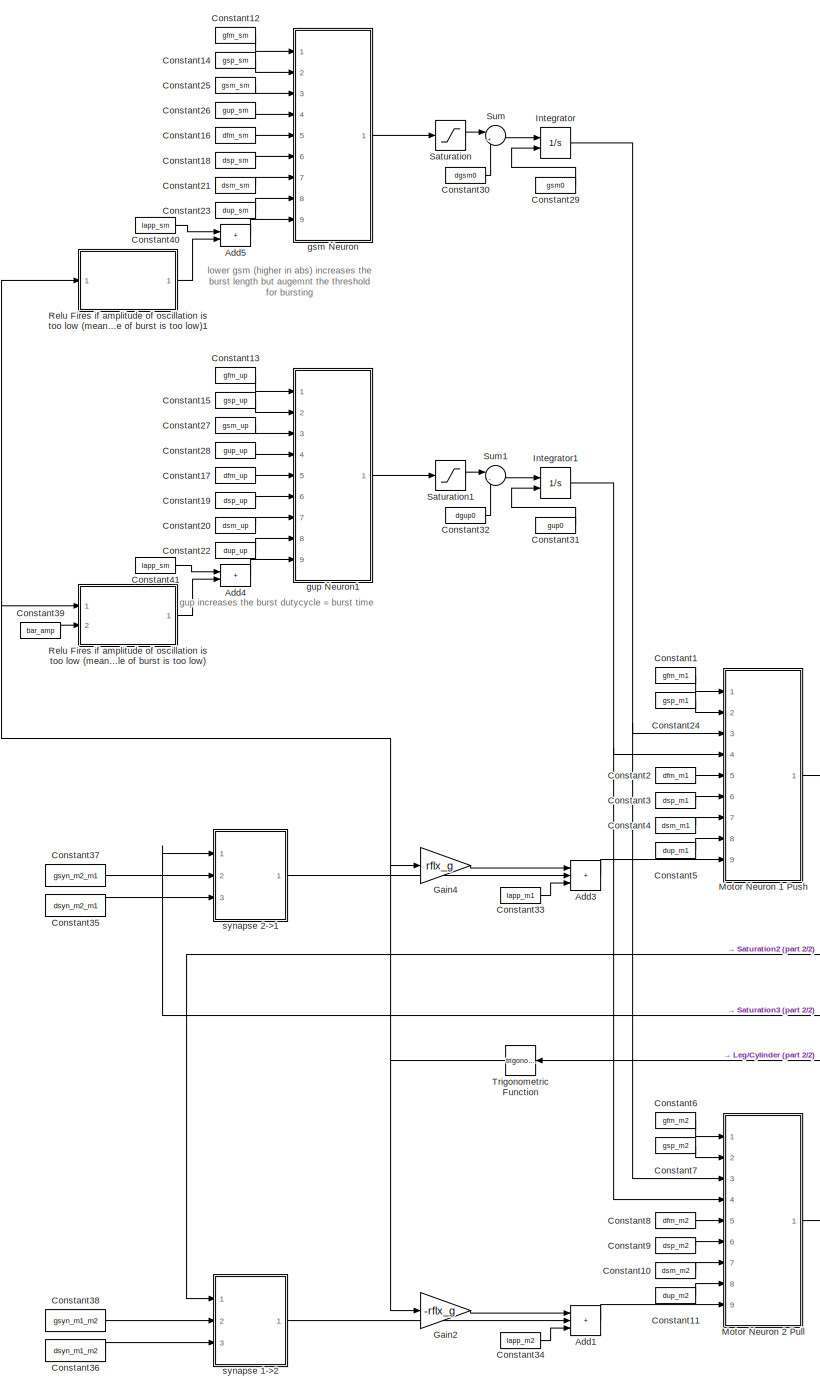
[diagram: root canvas - part 1/2, left side, full height]
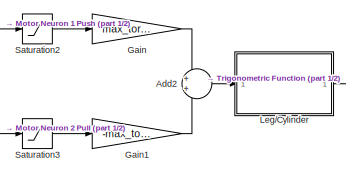
[diagram: root canvas - part 2/2, bottom right region]
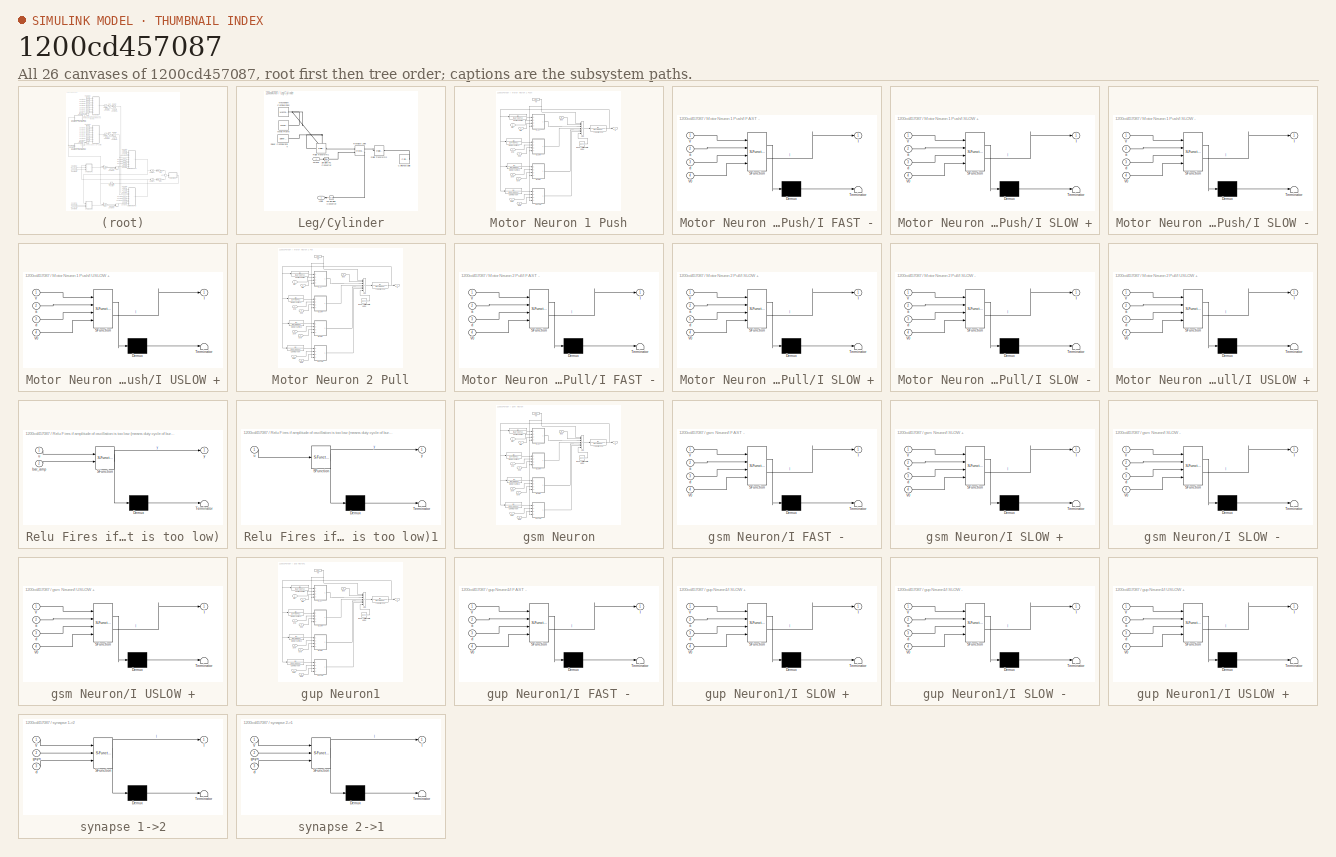
[diagram: thumbnail index - all 26 canvases of the model, root first then tree order]
MODEL slx_1200cd457087
KIND model
CONFIG AbsTol = auto
CONFIG EnableMultiTasking = off
CONFIG FixedStep = auto
CONFIG MaxStep = auto
CONFIG MinStep = auto
CONFIG RelTol = 1e-3
CONFIG SampleTimeConstraint = Unconstrained
CONFIG SolverName = VariableStepAuto
CONFIG StartTime = 0.0
CONFIG StopTime = 10.0
BLOCK [Sum] Add1
  IconShape = rectangular
  Inputs = +++
  Ports = [3, 1]
BLOCK [Sum] Add2
  Ports = [2, 1]
BLOCK [Sum] Add3
  IconShape = rectangular
  Inputs = +++
  Ports = [3, 1]
BLOCK [Sum] Add4
  IconShape = rectangular
  Ports = [2, 1]
BLOCK [Sum] Add5
  IconShape = rectangular
  Ports = [2, 1]
BLOCK [Constant] Constant1
  Value = gfm_m1
BLOCK [Constant] Constant10
  Value = dsm_m2
BLOCK [Constant] Constant11
  Value = dup_m2
BLOCK [Constant] Constant12
  Value = gfm_sm
BLOCK [Constant] Constant13
  Value = gfm_up
BLOCK [Constant] Constant14
  Value = gsp_sm
BLOCK [Constant] Constant15
  Value = gsp_up
BLOCK [Constant] Constant16
  Value = dfm_sm
BLOCK [Constant] Constant17
  Value = dfm_up
BLOCK [Constant] Constant18
  Value = dsp_sm
BLOCK [Constant] Constant19
  Value = dsp_up
BLOCK [Constant] Constant2
  Value = dfm_m1
BLOCK [Constant] Constant20
  Value = dsm_up
BLOCK [Constant] Constant21
  Value = dsm_sm
BLOCK [Constant] Constant22
  Value = dup_up
BLOCK [Constant] Constant23
  Value = dup_sm
BLOCK [Constant] Constant24
  Value = gsp_m1
BLOCK [Constant] Constant25
  Value = gsm_sm
BLOCK [Constant] Constant26
  Value = gup_sm
BLOCK [Constant] Constant27
  Value = gsm_up
BLOCK [Constant] Constant28
  Value = gup_up
BLOCK [Constant] Constant29
  Value = gsm0
BLOCK [Constant] Constant3
  Value = dsp_m1
BLOCK [Constant] Constant30
  Value = dgsm0
BLOCK [Constant] Constant31
  Value = gup0
BLOCK [Constant] Constant32
  Value = dgup0
BLOCK [Constant] Constant33
  Value = Iapp_m1
BLOCK [Constant] Constant34
  Value = Iapp_m2
BLOCK [Constant] Constant35
  Value = dsyn_m2_m1
BLOCK [Constant] Constant36
  Value = dsyn_m1_m2
BLOCK [Constant] Constant37
  Value = gsyn_m2_m1
BLOCK [Constant] Constant38
  Value = gsyn_m1_m2
BLOCK [Constant] Constant39
  NameLocation = top
  Value = bar_amp
BLOCK [Constant] Constant4
  Value = dsm_m1
BLOCK [Constant] Constant40
  Value = Iapp_sm
BLOCK [Constant] Constant41
  Value = Iapp_sm
BLOCK [Constant] Constant5
  Value = dup_m1
BLOCK [Constant] Constant6
  Value = gfm_m2
BLOCK [Constant] Constant7
  Value = gsp_m2
BLOCK [Constant] Constant8
  Value = dfm_m2
BLOCK [Constant] Constant9
  Value = dsp_m2
BLOCK [Gain] Gain
  Gain = max_torque
BLOCK [Gain] Gain1
  Gain = -max_torque
BLOCK [Gain] Gain2
  Gain = -rflx_g
BLOCK [Gain] Gain4
  Gain = rflx_g
  NameLocation = top
BLOCK [Integrator] Integrator
  InitialCondition = gsm0
  InitialConditionSource = external
  Ports = [2, 1]
BLOCK [Integrator] Integrator1
  InitialCondition = gsm0
  InitialConditionSource = external
  Ports = [2, 1]
BLOCK [SubSystem] Leg//Cylinder
  Ports = [1, 1]
  RequestExecContextInheritance = off
BLOCK [Outport] Leg//Cylinder/Angle
BLOCK [Reference] Leg//Cylinder/Cylindrical Solid  REF=sm_lib/Body Elements/Cylindrical Solid
  Ports = [0, 0, 0, 0, 0, 0, 1]
  SourceBlock = sm_lib/Body Elements/Cylindrical Solid
  SourceProductBaseCode = MS
  SourceType = Cylindrical Solid
BLOCK [Reference] Leg//Cylinder/Mechanism Configuration  REF=sm_lib/Utilities/Mechanism
Configuration
  Ports = [0, 0, 0, 0, 0, 0, 1]
  SourceBlock = sm_lib/Utilities/Mechanism\nConfiguration
  SourceProductBaseCode = MS
  SourceType = Mechanism\nConfiguration
BLOCK [Reference] Leg//Cylinder/PS-Simulink Converter  REF=nesl_utility/PS-Simulink
Converter
  Ports = [0, 1, 0, 0, 0, 1]
  SourceBlock = nesl_utility/PS-Simulink\nConverter
  SourceProductBaseCode = SS,PW,VE
  SourceType = PS-Simulink\nConverter
BLOCK [Reference] Leg//Cylinder/Revolute Joint  REF=sm_lib/Joints/Revolute Joint
  Ports = [0, 0, 0, 0, 0, 2, 2]
  SourceBlock = sm_lib/Joints/Revolute Joint
  SourceProductBaseCode = MS
  SourceType = Revolute Joint
BLOCK [Reference] Leg//Cylinder/Rigid Transform1  REF=sm_lib/Frames and
Transforms/Rigid
Transform
  Ports = [0, 0, 0, 0, 0, 1, 1]
  SourceBlock = sm_lib/Frames and\nTransforms/Rigid\nTransform
  SourceProductBaseCode = MS
  SourceType = Rigid\nTransform
BLOCK [Reference] Leg//Cylinder/Rigid Transform2  REF=sm_lib/Frames and
Transforms/Rigid
Transform
  Ports = [0, 0, 0, 0, 0, 1, 1]
  SourceBlock = sm_lib/Frames and\nTransforms/Rigid\nTransform
  SourceProductBaseCode = MS
  SourceType = Rigid\nTransform
BLOCK [Reference] Leg//Cylinder/Simulink-PS Converter  REF=nesl_utility/Simulink-PS
Converter
  Ports = [1, 0, 0, 0, 0, 0, 1]
  SourceBlock = nesl_utility/Simulink-PS\nConverter
  SourceProductBaseCode = SS,PW,VE
  SourceType = Simulink-PS\nConverter
BLOCK [Reference] Leg//Cylinder/Solver Configuration  REF=nesl_utility/Solver
Configuration
  Ports = [0, 0, 0, 0, 0, 0, 1]
  SourceBlock = nesl_utility/Solver\nConfiguration
  SourceProductBaseCode = SS,PW,VE
  SourceType = Solver\nConfiguration
BLOCK [Inport] Leg//Cylinder/Torque
BLOCK [Reference] Leg//Cylinder/World Frame  REF=sm_lib/Frames and
Transforms/World Frame
  Ports = [0, 0, 0, 0, 0, 0, 1]
  SourceBlock = sm_lib/Frames and\nTransforms/World Frame
  SourceProductBaseCode = MS
  SourceType = World Frame
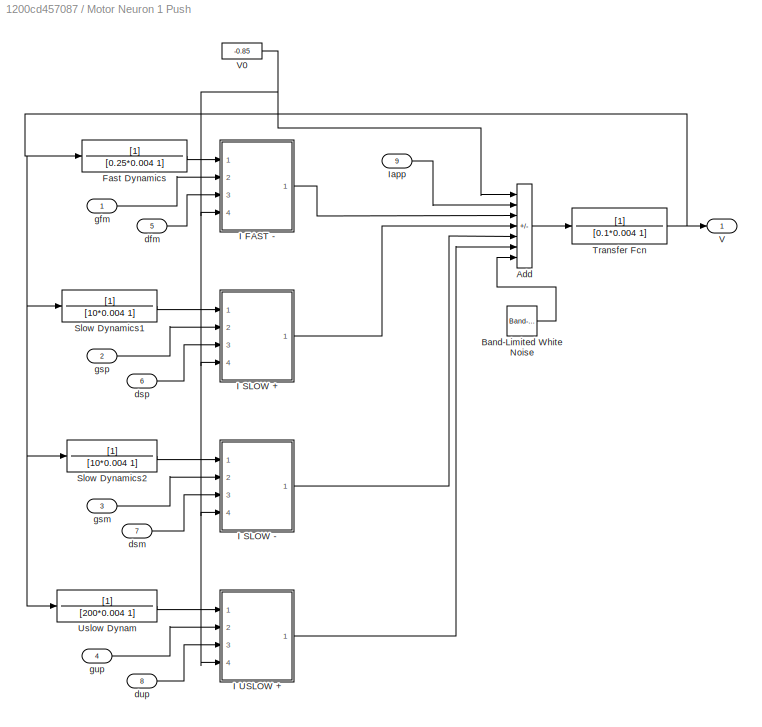
BLOCK [SubSystem] Motor Neuron 1 Push
  Ports = [9, 1]
  RequestExecContextInheritance = off
BLOCK [Sum] Motor Neuron 1 Push/Add
  IconShape = rectangular
  Inputs = ++----+
  Ports = [7, 1]
BLOCK [Reference] Motor Neuron 1 Push/Band-Limited White Noise  REF=simulink/Sources/Band-Limited
White Noise
  Ports = [0, 1]
  SourceBlock = simulink/Sources/Band-Limited\nWhite Noise
  SourceProductBaseCode = SL
  SourceType = Band-Limited White Noise.
BLOCK [TransferFcn] Motor Neuron 1 Push/Fast Dynamics
  Denominator = [0.25*0.004 1]
BLOCK [SubSystem] Motor Neuron 1 Push/I FAST -
  ErrorFcn = Stateflow.Translate.translate
  PermitHierarchicalResolution = ExplicitOnly
  Ports = [4, 1]
  RequestExecContextInheritance = off
  SFBlockType = MATLAB Function
  TreatAsAtomicUnit = on
BLOCK [Demux] Motor Neuron 1 Push/I FAST -/ Demux 
  Outputs = 1
  Ports = [1, 1]
BLOCK [S-Function] Motor Neuron 1 Push/I FAST -/ SFunction 
  EnableBusSupport = on
  FunctionName = sf_sfun
  PortCounts = [4 2]
  Ports = [4, 2]
  SFcnIsStateOwnerBlock = off
  SFunctionDeploymentMode = off
  Tag = Stateflow S-Function 27
BLOCK [Terminator] Motor Neuron 1 Push/I FAST -/ Terminator 
BLOCK [Outport] Motor Neuron 1 Push/I FAST -/I
BLOCK [Inport] Motor Neuron 1 Push/I FAST -/V
BLOCK [Inport] Motor Neuron 1 Push/I FAST -/V0
  Port = 4
BLOCK [Inport] Motor Neuron 1 Push/I FAST -/a
  Port = 2
BLOCK [Inport] Motor Neuron 1 Push/I FAST -/d
  Port = 3
BLOCK [SubSystem] Motor Neuron 1 Push/I SLOW +
  ErrorFcn = Stateflow.Translate.translate
  PermitHierarchicalResolution = ExplicitOnly
  Ports = [4, 1]
  RequestExecContextInheritance = off
  SFBlockType = MATLAB Function
  TreatAsAtomicUnit = on
BLOCK [Demux] Motor Neuron 1 Push/I SLOW +/ Demux 
  Outputs = 1
  Ports = [1, 1]
BLOCK [S-Function] Motor Neuron 1 Push/I SLOW +/ SFunction 
  EnableBusSupport = on
  FunctionName = sf_sfun
  PortCounts = [4 2]
  Ports = [4, 2]
  SFcnIsStateOwnerBlock = off
  SFunctionDeploymentMode = off
  Tag = Stateflow S-Function 28
BLOCK [Terminator] Motor Neuron 1 Push/I SLOW +/ Terminator 
BLOCK [Outport] Motor Neuron 1 Push/I SLOW +/I
BLOCK [Inport] Motor Neuron 1 Push/I SLOW +/V
BLOCK [Inport] Motor Neuron 1 Push/I SLOW +/V0
  Port = 4
BLOCK [Inport] Motor Neuron 1 Push/I SLOW +/a
  Port = 2
BLOCK [Inport] Motor Neuron 1 Push/I SLOW +/d
  Port = 3
BLOCK [SubSystem] Motor Neuron 1 Push/I SLOW -
  ErrorFcn = Stateflow.Translate.translate
  PermitHierarchicalResolution = ExplicitOnly
  Ports = [4, 1]
  RequestExecContextInheritance = off
  SFBlockType = MATLAB Function
  TreatAsAtomicUnit = on
BLOCK [Demux] Motor Neuron 1 Push/I SLOW -/ Demux 
  Outputs = 1
  Ports = [1, 1]
BLOCK [S-Function] Motor Neuron 1 Push/I SLOW -/ SFunction 
  EnableBusSupport = on
  FunctionName = sf_sfun
  PortCounts = [4 2]
  Ports = [4, 2]
  SFcnIsStateOwnerBlock = off
  SFunctionDeploymentMode = off
  Tag = Stateflow S-Function 29
BLOCK [Terminator] Motor Neuron 1 Push/I SLOW -/ Terminator 
BLOCK [Outport] Motor Neuron 1 Push/I SLOW -/I
BLOCK [Inport] Motor Neuron 1 Push/I SLOW -/V
BLOCK [Inport] Motor Neuron 1 Push/I SLOW -/V0
  Port = 4
BLOCK [Inport] Motor Neuron 1 Push/I SLOW -/a
  Port = 2
BLOCK [Inport] Motor Neuron 1 Push/I SLOW -/d
  Port = 3
BLOCK [SubSystem] Motor Neuron 1 Push/I USLOW +
  ErrorFcn = Stateflow.Translate.translate
  PermitHierarchicalResolution = ExplicitOnly
  Ports = [4, 1]
  RequestExecContextInheritance = off
  SFBlockType = MATLAB Function
  TreatAsAtomicUnit = on
BLOCK [Demux] Motor Neuron 1 Push/I USLOW +/ Demux 
  Outputs = 1
  Ports = [1, 1]
BLOCK [S-Function] Motor Neuron 1 Push/I USLOW +/ SFunction 
  EnableBusSupport = on
  FunctionName = sf_sfun
  PortCounts = [4 2]
  Ports = [4, 2]
  SFcnIsStateOwnerBlock = off
  SFunctionDeploymentMode = off
  Tag = Stateflow S-Function 30
BLOCK [Terminator] Motor Neuron 1 Push/I USLOW +/ Terminator 
BLOCK [Outport] Motor Neuron 1 Push/I USLOW +/I
BLOCK [Inport] Motor Neuron 1 Push/I USLOW +/V
BLOCK [Inport] Motor Neuron 1 Push/I USLOW +/V0
  Port = 4
BLOCK [Inport] Motor Neuron 1 Push/I USLOW +/a
  Port = 2
BLOCK [Inport] Motor Neuron 1 Push/I USLOW +/d
  Port = 3
BLOCK [Inport] Motor Neuron 1 Push/Iapp
  Port = 9
BLOCK [TransferFcn] Motor Neuron 1 Push/Slow Dynamics1
  Denominator = [10*0.004 1]
BLOCK [TransferFcn] Motor Neuron 1 Push/Slow Dynamics2
  Denominator = [10*0.004 1]
BLOCK [TransferFcn] Motor Neuron 1 Push/Transfer Fcn
  Denominator = [0.1*0.004 1]
BLOCK [TransferFcn] Motor Neuron 1 Push/Uslow Dynam
  Denominator = [200*0.004 1]
BLOCK [Outport] Motor Neuron 1 Push/V
BLOCK [Constant] Motor Neuron 1 Push/V0
  Value = -0.85
BLOCK [Inport] Motor Neuron 1 Push/dfm
  Port = 5
BLOCK [Inport] Motor Neuron 1 Push/dsm
  Port = 7
BLOCK [Inport] Motor Neuron 1 Push/dsp
  Port = 6
BLOCK [Inport] Motor Neuron 1 Push/dup
  Port = 8
BLOCK [Inport] Motor Neuron 1 Push/gfm
BLOCK [Inport] Motor Neuron 1 Push/gsm
  Port = 3
BLOCK [Inport] Motor Neuron 1 Push/gsp
  Port = 2
BLOCK [Inport] Motor Neuron 1 Push/gup
  Port = 4
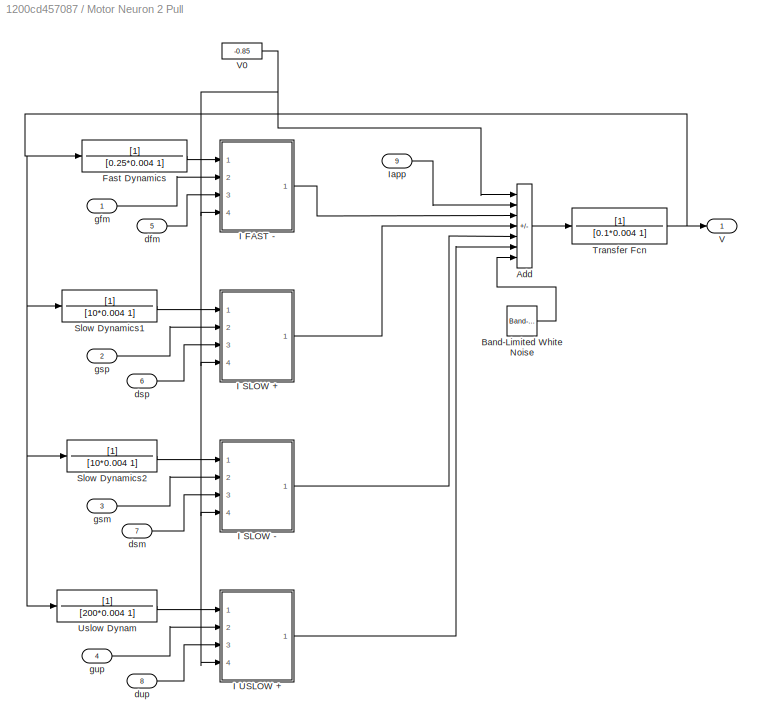
BLOCK [SubSystem] Motor Neuron 2 Pull
  Ports = [9, 1]
  RequestExecContextInheritance = off
BLOCK [Sum] Motor Neuron 2 Pull/Add
  IconShape = rectangular
  Inputs = ++----+
  Ports = [7, 1]
BLOCK [Reference] Motor Neuron 2 Pull/Band-Limited White Noise  REF=simulink/Sources/Band-Limited
White Noise
  Ports = [0, 1]
  SourceBlock = simulink/Sources/Band-Limited\nWhite Noise
  SourceProductBaseCode = SL
  SourceType = Band-Limited White Noise.
BLOCK [TransferFcn] Motor Neuron 2 Pull/Fast Dynamics
  Denominator = [0.25*0.004 1]
BLOCK [SubSystem] Motor Neuron 2 Pull/I FAST -
  ErrorFcn = Stateflow.Translate.translate
  PermitHierarchicalResolution = ExplicitOnly
  Ports = [4, 1]
  RequestExecContextInheritance = off
  SFBlockType = MATLAB Function
  TreatAsAtomicUnit = on
BLOCK [Demux] Motor Neuron 2 Pull/I FAST -/ Demux 
  Outputs = 1
  Ports = [1, 1]
BLOCK [S-Function] Motor Neuron 2 Pull/I FAST -/ SFunction 
  EnableBusSupport = on
  FunctionName = sf_sfun
  PortCounts = [4 2]
  Ports = [4, 2]
  SFcnIsStateOwnerBlock = off
  SFunctionDeploymentMode = off
  Tag = Stateflow S-Function 1
BLOCK [Terminator] Motor Neuron 2 Pull/I FAST -/ Terminator 
BLOCK [Outport] Motor Neuron 2 Pull/I FAST -/I
BLOCK [Inport] Motor Neuron 2 Pull/I FAST -/V
BLOCK [Inport] Motor Neuron 2 Pull/I FAST -/V0
  Port = 4
BLOCK [Inport] Motor Neuron 2 Pull/I FAST -/a
  Port = 2
BLOCK [Inport] Motor Neuron 2 Pull/I FAST -/d
  Port = 3
BLOCK [SubSystem] Motor Neuron 2 Pull/I SLOW +
  ErrorFcn = Stateflow.Translate.translate
  PermitHierarchicalResolution = ExplicitOnly
  Ports = [4, 1]
  RequestExecContextInheritance = off
  SFBlockType = MATLAB Function
  TreatAsAtomicUnit = on
BLOCK [Demux] Motor Neuron 2 Pull/I SLOW +/ Demux 
  Outputs = 1
  Ports = [1, 1]
BLOCK [S-Function] Motor Neuron 2 Pull/I SLOW +/ SFunction 
  EnableBusSupport = on
  FunctionName = sf_sfun
  PortCounts = [4 2]
  Ports = [4, 2]
  SFcnIsStateOwnerBlock = off
  SFunctionDeploymentMode = off
  Tag = Stateflow S-Function 2
BLOCK [Terminator] Motor Neuron 2 Pull/I SLOW +/ Terminator 
BLOCK [Outport] Motor Neuron 2 Pull/I SLOW +/I
BLOCK [Inport] Motor Neuron 2 Pull/I SLOW +/V
BLOCK [Inport] Motor Neuron 2 Pull/I SLOW +/V0
  Port = 4
BLOCK [Inport] Motor Neuron 2 Pull/I SLOW +/a
  Port = 2
BLOCK [Inport] Motor Neuron 2 Pull/I SLOW +/d
  Port = 3
BLOCK [SubSystem] Motor Neuron 2 Pull/I SLOW -
  ErrorFcn = Stateflow.Translate.translate
  PermitHierarchicalResolution = ExplicitOnly
  Ports = [4, 1]
  RequestExecContextInheritance = off
  SFBlockType = MATLAB Function
  TreatAsAtomicUnit = on
BLOCK [Demux] Motor Neuron 2 Pull/I SLOW -/ Demux 
  Outputs = 1
  Ports = [1, 1]
BLOCK [S-Function] Motor Neuron 2 Pull/I SLOW -/ SFunction 
  EnableBusSupport = on
  FunctionName = sf_sfun
  PortCounts = [4 2]
  Ports = [4, 2]
  SFcnIsStateOwnerBlock = off
  SFunctionDeploymentMode = off
  Tag = Stateflow S-Function 3
BLOCK [Terminator] Motor Neuron 2 Pull/I SLOW -/ Terminator 
BLOCK [Outport] Motor Neuron 2 Pull/I SLOW -/I
BLOCK [Inport] Motor Neuron 2 Pull/I SLOW -/V
BLOCK [Inport] Motor Neuron 2 Pull/I SLOW -/V0
  Port = 4
BLOCK [Inport] Motor Neuron 2 Pull/I SLOW -/a
  Port = 2
BLOCK [Inport] Motor Neuron 2 Pull/I SLOW -/d
  Port = 3
BLOCK [SubSystem] Motor Neuron 2 Pull/I USLOW +
  ErrorFcn = Stateflow.Translate.translate
  PermitHierarchicalResolution = ExplicitOnly
  Ports = [4, 1]
  RequestExecContextInheritance = off
  SFBlockType = MATLAB Function
  TreatAsAtomicUnit = on
BLOCK [Demux] Motor Neuron 2 Pull/I USLOW +/ Demux 
  Outputs = 1
  Ports = [1, 1]
BLOCK [S-Function] Motor Neuron 2 Pull/I USLOW +/ SFunction 
  EnableBusSupport = on
  FunctionName = sf_sfun
  PortCounts = [4 2]
  Ports = [4, 2]
  SFcnIsStateOwnerBlock = off
  SFunctionDeploymentMode = off
  Tag = Stateflow S-Function 4
BLOCK [Terminator] Motor Neuron 2 Pull/I USLOW +/ Terminator 
BLOCK [Outport] Motor Neuron 2 Pull/I USLOW +/I
BLOCK [Inport] Motor Neuron 2 Pull/I USLOW +/V
BLOCK [Inport] Motor Neuron 2 Pull/I USLOW +/V0
  Port = 4
BLOCK [Inport] Motor Neuron 2 Pull/I USLOW +/a
  Port = 2
BLOCK [Inport] Motor Neuron 2 Pull/I USLOW +/d
  Port = 3
BLOCK [Inport] Motor Neuron 2 Pull/Iapp
  Port = 9
BLOCK [TransferFcn] Motor Neuron 2 Pull/Slow Dynamics1
  Denominator = [10*0.004 1]
BLOCK [TransferFcn] Motor Neuron 2 Pull/Slow Dynamics2
  Denominator = [10*0.004 1]
BLOCK [TransferFcn] Motor Neuron 2 Pull/Transfer Fcn
  Denominator = [0.1*0.004 1]
BLOCK [TransferFcn] Motor Neuron 2 Pull/Uslow Dynam
  Denominator = [200*0.004 1]
BLOCK [Outport] Motor Neuron 2 Pull/V
BLOCK [Constant] Motor Neuron 2 Pull/V0
  Value = -0.85
BLOCK [Inport] Motor Neuron 2 Pull/dfm
  Port = 5
BLOCK [Inport] Motor Neuron 2 Pull/dsm
  Port = 7
BLOCK [Inport] Motor Neuron 2 Pull/dsp
  Port = 6
BLOCK [Inport] Motor Neuron 2 Pull/dup
  Port = 8
BLOCK [Inport] Motor Neuron 2 Pull/gfm
BLOCK [Inport] Motor Neuron 2 Pull/gsm
  Port = 3
BLOCK [Inport] Motor Neuron 2 Pull/gsp
  Port = 2
BLOCK [Inport] Motor Neuron 2 Pull/gup
  Port = 4
BLOCK [SubSystem] Relu Fires if amplitude of oscillation is too low (means duty cycle of burst is too low)
  ErrorFcn = Stateflow.Translate.translate
  PermitHierarchicalResolution = ExplicitOnly
  Ports = [2, 1]
  RequestExecContextInheritance = off
  SFBlockType = MATLAB Function
  TreatAsAtomicUnit = on
BLOCK [Demux] Relu Fires if amplitude of oscillation is too low (means duty cycle of burst is too low)/ Demux 
  Outputs = 1
  Ports = [1, 1]
BLOCK [S-Function] Relu Fires if amplitude of oscillation is too low (means duty cycle of burst is too low)/ SFunction 
  EnableBusSupport = on
  FunctionName = sf_sfun
  PortCounts = [2 2]
  Ports = [2, 2]
  SFcnIsStateOwnerBlock = off
  SFunctionDeploymentMode = off
  Tag = Stateflow S-Function 17
BLOCK [Terminator] Relu Fires if amplitude of oscillation is too low (means duty cycle of burst is too low)/ Terminator 
BLOCK [Inport] Relu Fires if amplitude of oscillation is too low (means duty cycle of burst is too low)/bar_amp
  Port = 2
BLOCK [Inport] Relu Fires if amplitude of oscillation is too low (means duty cycle of burst is too low)/u
BLOCK [Outport] Relu Fires if amplitude of oscillation is too low (means duty cycle of burst is too low)/y
BLOCK [SubSystem] Relu Fires if amplitude of oscillation is too low (means duty cycle of burst is too low)1
  ErrorFcn = Stateflow.Translate.translate
  PermitHierarchicalResolution = ExplicitOnly
  Ports = [1, 1]
  RequestExecContextInheritance = off
  SFBlockType = MATLAB Function
  TreatAsAtomicUnit = on
BLOCK [Demux] Relu Fires if amplitude of oscillation is too low (means duty cycle of burst is too low)1/ Demux 
  Outputs = 1
  Ports = [1, 1]
BLOCK [S-Function] Relu Fires if amplitude of oscillation is too low (means duty cycle of burst is too low)1/ SFunction 
  EnableBusSupport = on
  FunctionName = sf_sfun
  PortCounts = [1 2]
  Ports = [1, 2]
  SFcnIsStateOwnerBlock = off
  SFunctionDeploymentMode = off
  Tag = Stateflow S-Function 15
BLOCK [Terminator] Relu Fires if amplitude of oscillation is too low (means duty cycle of burst is too low)1/ Terminator 
BLOCK [Inport] Relu Fires if amplitude of oscillation is too low (means duty cycle of burst is too low)1/u
BLOCK [Outport] Relu Fires if amplitude of oscillation is too low (means duty cycle of burst is too low)1/y
BLOCK [Saturate] Saturation
  LowerLimit = 0
  UpperLimit = 5
BLOCK [Saturate] Saturation1
  LowerLimit = 0
  UpperLimit = 5
BLOCK [Saturate] Saturation2
  LowerLimit = 0.0
  UpperLimit = 1.0
BLOCK [Saturate] Saturation3
  LowerLimit = 0.0
  UpperLimit = 1.0
BLOCK [Sum] Sum
  Inputs = |++
  Ports = [2, 1]
BLOCK [Sum] Sum1
  Inputs = |-+
  Ports = [2, 1]
BLOCK [Trigonometry] Trigonometric Function
  NameLocation = top
  Ports = [1, 1]
BLOCK [SubSystem] gsm Neuron
  Ports = [9, 1]
  RequestExecContextInheritance = off
BLOCK [Sum] gsm Neuron/Add
  IconShape = rectangular
  Inputs = ++----+
  Ports = [7, 1]
BLOCK [Reference] gsm Neuron/Band-Limited White Noise  REF=simulink/Sources/Band-Limited
White Noise
  Ports = [0, 1]
  SourceBlock = simulink/Sources/Band-Limited\nWhite Noise
  SourceProductBaseCode = SL
  SourceType = Band-Limited White Noise.
BLOCK [TransferFcn] gsm Neuron/Fast Dynamics
  Denominator = [0.25*0.004 1]
BLOCK [SubSystem] gsm Neuron/I FAST -
  ErrorFcn = Stateflow.Translate.translate
  PermitHierarchicalResolution = ExplicitOnly
  Ports = [4, 1]
  RequestExecContextInheritance = off
  SFBlockType = MATLAB Function
  TreatAsAtomicUnit = on
BLOCK [Demux] gsm Neuron/I FAST -/ Demux 
  Outputs = 1
  Ports = [1, 1]
BLOCK [S-Function] gsm Neuron/I FAST -/ SFunction 
  EnableBusSupport = on
  FunctionName = sf_sfun
  PortCounts = [4 2]
  Ports = [4, 2]
  SFcnIsStateOwnerBlock = off
  SFunctionDeploymentMode = off
  Tag = Stateflow S-Function 5
BLOCK [Terminator] gsm Neuron/I FAST -/ Terminator 
BLOCK [Outport] gsm Neuron/I FAST -/I
BLOCK [Inport] gsm Neuron/I FAST -/V
BLOCK [Inport] gsm Neuron/I FAST -/V0
  Port = 4
BLOCK [Inport] gsm Neuron/I FAST -/a
  Port = 2
BLOCK [Inport] gsm Neuron/I FAST -/d
  Port = 3
BLOCK [SubSystem] gsm Neuron/I SLOW +
  ErrorFcn = Stateflow.Translate.translate
  PermitHierarchicalResolution = ExplicitOnly
  Ports = [4, 1]
  RequestExecContextInheritance = off
  SFBlockType = MATLAB Function
  TreatAsAtomicUnit = on
BLOCK [Demux] gsm Neuron/I SLOW +/ Demux 
  Outputs = 1
  Ports = [1, 1]
BLOCK [S-Function] gsm Neuron/I SLOW +/ SFunction 
  EnableBusSupport = on
  FunctionName = sf_sfun
  PortCounts = [4 2]
  Ports = [4, 2]
  SFcnIsStateOwnerBlock = off
  SFunctionDeploymentMode = off
  Tag = Stateflow S-Function 6
BLOCK [Terminator] gsm Neuron/I SLOW +/ Terminator 
BLOCK [Outport] gsm Neuron/I SLOW +/I
BLOCK [Inport] gsm Neuron/I SLOW +/V
BLOCK [Inport] gsm Neuron/I SLOW +/V0
  Port = 4
BLOCK [Inport] gsm Neuron/I SLOW +/a
  Port = 2
BLOCK [Inport] gsm Neuron/I SLOW +/d
  Port = 3
BLOCK [SubSystem] gsm Neuron/I SLOW -
  ErrorFcn = Stateflow.Translate.translate
  PermitHierarchicalResolution = ExplicitOnly
  Ports = [4, 1]
  RequestExecContextInheritance = off
  SFBlockType = MATLAB Function
  TreatAsAtomicUnit = on
BLOCK [Demux] gsm Neuron/I SLOW -/ Demux 
  Outputs = 1
  Ports = [1, 1]
BLOCK [S-Function] gsm Neuron/I SLOW -/ SFunction 
  EnableBusSupport = on
  FunctionName = sf_sfun
  PortCounts = [4 2]
  Ports = [4, 2]
  SFcnIsStateOwnerBlock = off
  SFunctionDeploymentMode = off
  Tag = Stateflow S-Function 7
BLOCK [Terminator] gsm Neuron/I SLOW -/ Terminator 
BLOCK [Outport] gsm Neuron/I SLOW -/I
BLOCK [Inport] gsm Neuron/I SLOW -/V
BLOCK [Inport] gsm Neuron/I SLOW -/V0
  Port = 4
BLOCK [Inport] gsm Neuron/I SLOW -/a
  Port = 2
BLOCK [Inport] gsm Neuron/I SLOW -/d
  Port = 3
BLOCK [SubSystem] gsm Neuron/I USLOW +
  ErrorFcn = Stateflow.Translate.translate
  PermitHierarchicalResolution = ExplicitOnly
  Ports = [4, 1]
  RequestExecContextInheritance = off
  SFBlockType = MATLAB Function
  TreatAsAtomicUnit = on
BLOCK [Demux] gsm Neuron/I USLOW +/ Demux 
  Outputs = 1
  Ports = [1, 1]
BLOCK [S-Function] gsm Neuron/I USLOW +/ SFunction 
  EnableBusSupport = on
  FunctionName = sf_sfun
  PortCounts = [4 2]
  Ports = [4, 2]
  SFcnIsStateOwnerBlock = off
  SFunctionDeploymentMode = off
  Tag = Stateflow S-Function 8
BLOCK [Terminator] gsm Neuron/I USLOW +/ Terminator 
BLOCK [Outport] gsm Neuron/I USLOW +/I
BLOCK [Inport] gsm Neuron/I USLOW +/V
BLOCK [Inport] gsm Neuron/I USLOW +/V0
  Port = 4
BLOCK [Inport] gsm Neuron/I USLOW +/a
  Port = 2
BLOCK [Inport] gsm Neuron/I USLOW +/d
  Port = 3
BLOCK [Inport] gsm Neuron/Iapp
  Port = 9
BLOCK [TransferFcn] gsm Neuron/Slow Dynamics1
  Denominator = [10*0.004 1]
BLOCK [TransferFcn] gsm Neuron/Slow Dynamics2
  Denominator = [10*0.004 1]
BLOCK [TransferFcn] gsm Neuron/Transfer Fcn
  Denominator = [0.1*0.004 1]
BLOCK [TransferFcn] gsm Neuron/Uslow Dynam
  Denominator = [200*0.004 1]
BLOCK [Outport] gsm Neuron/V
BLOCK [Constant] gsm Neuron/V0
  Value = -0.85
BLOCK [Inport] gsm Neuron/dfm
  Port = 5
BLOCK [Inport] gsm Neuron/dsm
  Port = 7
BLOCK [Inport] gsm Neuron/dsp
  Port = 6
BLOCK [Inport] gsm Neuron/dup
  Port = 8
BLOCK [Inport] gsm Neuron/gfm
BLOCK [Inport] gsm Neuron/gsm
  Port = 3
BLOCK [Inport] gsm Neuron/gsp
  Port = 2
BLOCK [Inport] gsm Neuron/gup
  Port = 4
BLOCK [SubSystem] gup Neuron1
  Ports = [9, 1]
  RequestExecContextInheritance = off
BLOCK [Sum] gup Neuron1/Add
  IconShape = rectangular
  Inputs = ++----+
  Ports = [7, 1]
BLOCK [Reference] gup Neuron1/Band-Limited White Noise  REF=simulink/Sources/Band-Limited
White Noise
  Ports = [0, 1]
  SourceBlock = simulink/Sources/Band-Limited\nWhite Noise
  SourceProductBaseCode = SL
  SourceType = Band-Limited White Noise.
BLOCK [TransferFcn] gup Neuron1/Fast Dynamics
  Denominator = [0.25*0.004 1]
BLOCK [SubSystem] gup Neuron1/I FAST -
  ErrorFcn = Stateflow.Translate.translate
  PermitHierarchicalResolution = ExplicitOnly
  Ports = [4, 1]
  RequestExecContextInheritance = off
  SFBlockType = MATLAB Function
  TreatAsAtomicUnit = on
BLOCK [Demux] gup Neuron1/I FAST -/ Demux 
  Outputs = 1
  Ports = [1, 1]
BLOCK [S-Function] gup Neuron1/I FAST -/ SFunction 
  EnableBusSupport = on
  FunctionName = sf_sfun
  PortCounts = [4 2]
  Ports = [4, 2]
  SFcnIsStateOwnerBlock = off
  SFunctionDeploymentMode = off
  Tag = Stateflow S-Function 9
BLOCK [Terminator] gup Neuron1/I FAST -/ Terminator 
BLOCK [Outport] gup Neuron1/I FAST -/I
BLOCK [Inport] gup Neuron1/I FAST -/V
BLOCK [Inport] gup Neuron1/I FAST -/V0
  Port = 4
BLOCK [Inport] gup Neuron1/I FAST -/a
  Port = 2
BLOCK [Inport] gup Neuron1/I FAST -/d
  Port = 3
BLOCK [SubSystem] gup Neuron1/I SLOW +
  ErrorFcn = Stateflow.Translate.translate
  PermitHierarchicalResolution = ExplicitOnly
  Ports = [4, 1]
  RequestExecContextInheritance = off
  SFBlockType = MATLAB Function
  TreatAsAtomicUnit = on
BLOCK [Demux] gup Neuron1/I SLOW +/ Demux 
  Outputs = 1
  Ports = [1, 1]
BLOCK [S-Function] gup Neuron1/I SLOW +/ SFunction 
  EnableBusSupport = on
  FunctionName = sf_sfun
  PortCounts = [4 2]
  Ports = [4, 2]
  SFcnIsStateOwnerBlock = off
  SFunctionDeploymentMode = off
  Tag = Stateflow S-Function 10
BLOCK [Terminator] gup Neuron1/I SLOW +/ Terminator 
BLOCK [Outport] gup Neuron1/I SLOW +/I
BLOCK [Inport] gup Neuron1/I SLOW +/V
BLOCK [Inport] gup Neuron1/I SLOW +/V0
  Port = 4
BLOCK [Inport] gup Neuron1/I SLOW +/a
  Port = 2
BLOCK [Inport] gup Neuron1/I SLOW +/d
  Port = 3
BLOCK [SubSystem] gup Neuron1/I SLOW -
  ErrorFcn = Stateflow.Translate.translate
  PermitHierarchicalResolution = ExplicitOnly
  Ports = [4, 1]
  RequestExecContextInheritance = off
  SFBlockType = MATLAB Function
  TreatAsAtomicUnit = on
BLOCK [Demux] gup Neuron1/I SLOW -/ Demux 
  Outputs = 1
  Ports = [1, 1]
BLOCK [S-Function] gup Neuron1/I SLOW -/ SFunction 
  EnableBusSupport = on
  FunctionName = sf_sfun
  PortCounts = [4 2]
  Ports = [4, 2]
  SFcnIsStateOwnerBlock = off
  SFunctionDeploymentMode = off
  Tag = Stateflow S-Function 11
BLOCK [Terminator] gup Neuron1/I SLOW -/ Terminator 
BLOCK [Outport] gup Neuron1/I SLOW -/I
BLOCK [Inport] gup Neuron1/I SLOW -/V
BLOCK [Inport] gup Neuron1/I SLOW -/V0
  Port = 4
BLOCK [Inport] gup Neuron1/I SLOW -/a
  Port = 2
BLOCK [Inport] gup Neuron1/I SLOW -/d
  Port = 3
BLOCK [SubSystem] gup Neuron1/I USLOW +
  ErrorFcn = Stateflow.Translate.translate
  PermitHierarchicalResolution = ExplicitOnly
  Ports = [4, 1]
  RequestExecContextInheritance = off
  SFBlockType = MATLAB Function
  TreatAsAtomicUnit = on
BLOCK [Demux] gup Neuron1/I USLOW +/ Demux 
  Outputs = 1
  Ports = [1, 1]
BLOCK [S-Function] gup Neuron1/I USLOW +/ SFunction 
  EnableBusSupport = on
  FunctionName = sf_sfun
  PortCounts = [4 2]
  Ports = [4, 2]
  SFcnIsStateOwnerBlock = off
  SFunctionDeploymentMode = off
  Tag = Stateflow S-Function 12
BLOCK [Terminator] gup Neuron1/I USLOW +/ Terminator 
BLOCK [Outport] gup Neuron1/I USLOW +/I
BLOCK [Inport] gup Neuron1/I USLOW +/V
BLOCK [Inport] gup Neuron1/I USLOW +/V0
  Port = 4
BLOCK [Inport] gup Neuron1/I USLOW +/a
  Port = 2
BLOCK [Inport] gup Neuron1/I USLOW +/d
  Port = 3
BLOCK [Inport] gup Neuron1/Iapp
  Port = 9
BLOCK [TransferFcn] gup Neuron1/Slow Dynamics1
  Denominator = [10*0.004 1]
BLOCK [TransferFcn] gup Neuron1/Slow Dynamics2
  Denominator = [10*0.004 1]
BLOCK [TransferFcn] gup Neuron1/Transfer Fcn
  Denominator = [0.1*0.004 1]
BLOCK [TransferFcn] gup Neuron1/Uslow Dynam
  Denominator = [200*0.004 1]
BLOCK [Outport] gup Neuron1/V
BLOCK [Constant] gup Neuron1/V0
  Value = -0.85
BLOCK [Inport] gup Neuron1/dfm
  Port = 5
BLOCK [Inport] gup Neuron1/dsm
  Port = 7
BLOCK [Inport] gup Neuron1/dsp
  Port = 6
BLOCK [Inport] gup Neuron1/dup
  Port = 8
BLOCK [Inport] gup Neuron1/gfm
BLOCK [Inport] gup Neuron1/gsm
  Port = 3
BLOCK [Inport] gup Neuron1/gsp
  Port = 2
BLOCK [Inport] gup Neuron1/gup
  Port = 4
BLOCK [SubSystem] synapse 1->2
  ErrorFcn = Stateflow.Translate.translate
  PermitHierarchicalResolution = ExplicitOnly
  Ports = [3, 1]
  RequestExecContextInheritance = off
  SFBlockType = MATLAB Function
  TreatAsAtomicUnit = on
BLOCK [Demux] synapse 1->2/ Demux 
  Outputs = 1
  Ports = [1, 1]
BLOCK [S-Function] synapse 1->2/ SFunction 
  EnableBusSupport = on
  FunctionName = sf_sfun
  PortCounts = [3 2]
  Ports = [3, 2]
  SFcnIsStateOwnerBlock = off
  SFunctionDeploymentMode = off
  Tag = Stateflow S-Function 13
BLOCK [Terminator] synapse 1->2/ Terminator 
BLOCK [Outport] synapse 1->2/I
BLOCK [Inport] synapse 1->2/V
BLOCK [Inport] synapse 1->2/d
  Port = 3
BLOCK [Inport] synapse 1->2/gsyn
  Port = 2
BLOCK [SubSystem] synapse 2->1
  ErrorFcn = Stateflow.Translate.translate
  PermitHierarchicalResolution = ExplicitOnly
  Ports = [3, 1]
  RequestExecContextInheritance = off
  SFBlockType = MATLAB Function
  TreatAsAtomicUnit = on
BLOCK [Demux] synapse 2->1/ Demux 
  Outputs = 1
  Ports = [1, 1]
BLOCK [S-Function] synapse 2->1/ SFunction 
  EnableBusSupport = on
  FunctionName = sf_sfun
  PortCounts = [3 2]
  Ports = [3, 2]
  SFcnIsStateOwnerBlock = off
  SFunctionDeploymentMode = off
  Tag = Stateflow S-Function 14
BLOCK [Terminator] synapse 2->1/ Terminator 
BLOCK [Outport] synapse 2->1/I
BLOCK [Inport] synapse 2->1/V
BLOCK [Inport] synapse 2->1/d
  Port = 3
BLOCK [Inport] synapse 2->1/gsyn
  Port = 2
ANNOTATION (root): gup increases the burst dutycycle = burst time
ANNOTATION (root): lower gsm (higher in abs) increases the burst length but augemnt the threshold for bursting
LINE Add1:1 -> Motor Neuron 2 Pull:9
LINE Add2:1 -> Leg//Cylinder:1
LINE Add3:1 -> Motor Neuron 1 Push:9
LINE Add4:1 -> gup Neuron1:9
LINE Add5:1 -> gsm Neuron:9
LINE Constant10:1 -> Motor Neuron 2 Pull:7
LINE Constant11:1 -> Motor Neuron 2 Pull:8
LINE Constant12:1 -> gsm Neuron:1
LINE Constant13:1 -> gup Neuron1:1
LINE Constant14:1 -> gsm Neuron:2
LINE Constant15:1 -> gup Neuron1:2
LINE Constant16:1 -> gsm Neuron:5
LINE Constant17:1 -> gup Neuron1:5
LINE Constant18:1 -> gsm Neuron:6
LINE Constant19:1 -> gup Neuron1:6
LINE Constant1:1 -> Motor Neuron 1 Push:1
LINE Constant20:1 -> gup Neuron1:7
LINE Constant21:1 -> gsm Neuron:7
LINE Constant22:1 -> gup Neuron1:8
LINE Constant23:1 -> gsm Neuron:8
LINE Constant24:1 -> Motor Neuron 1 Push:2
LINE Constant25:1 -> gsm Neuron:3
LINE Constant26:1 -> gsm Neuron:4
LINE Constant27:1 -> gup Neuron1:3
LINE Constant28:1 -> gup Neuron1:4
LINE Constant29:1 -> Integrator:2
LINE Constant2:1 -> Motor Neuron 1 Push:5
LINE Constant30:1 -> Sum:2
LINE Constant31:1 -> Integrator1:2
LINE Constant32:1 -> Sum1:2
LINE Constant33:1 -> Add3:3
LINE Constant34:1 -> Add1:3
LINE Constant35:1 -> synapse 2->1:3
LINE Constant36:1 -> synapse 1->2:3
LINE Constant37:1 -> synapse 2->1:2
LINE Constant38:1 -> synapse 1->2:2
LINE Constant39:1 -> Relu Fires if amplitude of oscillation is too low (means duty cycle of burst is too low):2
LINE Constant3:1 -> Motor Neuron 1 Push:6
LINE Constant40:1 -> Add5:1
LINE Constant41:1 -> Add4:1
LINE Constant4:1 -> Motor Neuron 1 Push:7
LINE Constant5:1 -> Motor Neuron 1 Push:8
LINE Constant6:1 -> Motor Neuron 2 Pull:1
LINE Constant7:1 -> Motor Neuron 2 Pull:2
LINE Constant8:1 -> Motor Neuron 2 Pull:5
LINE Constant9:1 -> Motor Neuron 2 Pull:6
LINE Gain1:1 -> Add2:2
LINE Gain2:1 -> Add1:1
LINE Gain4:1 -> Add3:1
LINE Gain:1 -> Add2:1
NET Integrator1:1 -> Motor Neuron 1 Push:4, Motor Neuron 2 Pull:4
NET Integrator:1 -> Motor Neuron 1 Push:3, Motor Neuron 2 Pull:3
LINE Leg//Cylinder/PS-Simulink Converter:1 -> Leg//Cylinder/Angle:1
LINE Leg//Cylinder/Torque:1 -> Leg//Cylinder/Simulink-PS Converter:1
LINE Leg//Cylinder:1 -> Trigonometric Function:1
LINE Motor Neuron 1 Push/Add:1 -> Motor Neuron 1 Push/Transfer Fcn:1
LINE Motor Neuron 1 Push/Band-Limited White Noise:1 -> Motor Neuron 1 Push/Add:7
LINE Motor Neuron 1 Push/Fast Dynamics:1 -> Motor Neuron 1 Push/I FAST -:1
LINE Motor Neuron 1 Push/I FAST -:1 -> Motor Neuron 1 Push/Add:3
LINE Motor Neuron 1 Push/I SLOW +:1 -> Motor Neuron 1 Push/Add:4
LINE Motor Neuron 1 Push/I SLOW -:1 -> Motor Neuron 1 Push/Add:5
LINE Motor Neuron 1 Push/I USLOW +:1 -> Motor Neuron 1 Push/Add:6
LINE Motor Neuron 1 Push/Iapp:1 -> Motor Neuron 1 Push/Add:2
LINE Motor Neuron 1 Push/Slow Dynamics1:1 -> Motor Neuron 1 Push/I SLOW +:1
LINE Motor Neuron 1 Push/Slow Dynamics2:1 -> Motor Neuron 1 Push/I SLOW -:1
NET Motor Neuron 1 Push/Transfer Fcn:1 -> Motor Neuron 1 Push/Fast Dynamics:1, Motor Neuron 1 Push/Slow Dynamics1:1, Motor Neuron 1 Push/Slow Dynamics2:1, Motor Neuron 1 Push/Uslow Dynam:1, Motor Neuron 1 Push/V:1
LINE Motor Neuron 1 Push/Uslow Dynam:1 -> Motor Neuron 1 Push/I USLOW +:1
NET Motor Neuron 1 Push/V0:1 -> Motor Neuron 1 Push/Add:1, Motor Neuron 1 Push/I FAST -:4, Motor Neuron 1 Push/I SLOW +:4, Motor Neuron 1 Push/I SLOW -:4, Motor Neuron 1 Push/I USLOW +:4
LINE Motor Neuron 1 Push/dfm:1 -> Motor Neuron 1 Push/I FAST -:3
LINE Motor Neuron 1 Push/dsm:1 -> Motor Neuron 1 Push/I SLOW -:3
LINE Motor Neuron 1 Push/dsp:1 -> Motor Neuron 1 Push/I SLOW +:3
LINE Motor Neuron 1 Push/dup:1 -> Motor Neuron 1 Push/I USLOW +:3
LINE Motor Neuron 1 Push/gfm:1 -> Motor Neuron 1 Push/I FAST -:2
LINE Motor Neuron 1 Push/gsm:1 -> Motor Neuron 1 Push/I SLOW -:2
LINE Motor Neuron 1 Push/gsp:1 -> Motor Neuron 1 Push/I SLOW +:2
LINE Motor Neuron 1 Push/gup:1 -> Motor Neuron 1 Push/I USLOW +:2
NET Motor Neuron 1 Push:1 -> Saturation2:1, synapse 1->2:1
LINE Motor Neuron 2 Pull/Add:1 -> Motor Neuron 2 Pull/Transfer Fcn:1
LINE Motor Neuron 2 Pull/Band-Limited White Noise:1 -> Motor Neuron 2 Pull/Add:7
LINE Motor Neuron 2 Pull/Fast Dynamics:1 -> Motor Neuron 2 Pull/I FAST -:1
LINE Motor Neuron 2 Pull/I FAST -:1 -> Motor Neuron 2 Pull/Add:3
LINE Motor Neuron 2 Pull/I SLOW +:1 -> Motor Neuron 2 Pull/Add:4
LINE Motor Neuron 2 Pull/I SLOW -:1 -> Motor Neuron 2 Pull/Add:5
LINE Motor Neuron 2 Pull/I USLOW +:1 -> Motor Neuron 2 Pull/Add:6
LINE Motor Neuron 2 Pull/Iapp:1 -> Motor Neuron 2 Pull/Add:2
LINE Motor Neuron 2 Pull/Slow Dynamics1:1 -> Motor Neuron 2 Pull/I SLOW +:1
LINE Motor Neuron 2 Pull/Slow Dynamics2:1 -> Motor Neuron 2 Pull/I SLOW -:1
NET Motor Neuron 2 Pull/Transfer Fcn:1 -> Motor Neuron 2 Pull/Fast Dynamics:1, Motor Neuron 2 Pull/Slow Dynamics1:1, Motor Neuron 2 Pull/Slow Dynamics2:1, Motor Neuron 2 Pull/Uslow Dynam:1, Motor Neuron 2 Pull/V:1
LINE Motor Neuron 2 Pull/Uslow Dynam:1 -> Motor Neuron 2 Pull/I USLOW +:1
NET Motor Neuron 2 Pull/V0:1 -> Motor Neuron 2 Pull/Add:1, Motor Neuron 2 Pull/I FAST -:4, Motor Neuron 2 Pull/I SLOW +:4, Motor Neuron 2 Pull/I SLOW -:4, Motor Neuron 2 Pull/I USLOW +:4
LINE Motor Neuron 2 Pull/dfm:1 -> Motor Neuron 2 Pull/I FAST -:3
LINE Motor Neuron 2 Pull/dsm:1 -> Motor Neuron 2 Pull/I SLOW -:3
LINE Motor Neuron 2 Pull/dsp:1 -> Motor Neuron 2 Pull/I SLOW +:3
LINE Motor Neuron 2 Pull/dup:1 -> Motor Neuron 2 Pull/I USLOW +:3
LINE Motor Neuron 2 Pull/gfm:1 -> Motor Neuron 2 Pull/I FAST -:2
LINE Motor Neuron 2 Pull/gsm:1 -> Motor Neuron 2 Pull/I SLOW -:2
LINE Motor Neuron 2 Pull/gsp:1 -> Motor Neuron 2 Pull/I SLOW +:2
LINE Motor Neuron 2 Pull/gup:1 -> Motor Neuron 2 Pull/I USLOW +:2
NET Motor Neuron 2 Pull:1 -> Saturation3:1, synapse 2->1:1
LINE Relu Fires if amplitude of oscillation is too low (means duty cycle of burst is too low)1:1 -> Add5:2
LINE Relu Fires if amplitude of oscillation is too low (means duty cycle of burst is too low):1 -> Add4:2
LINE Saturation1:1 -> Sum1:1
LINE Saturation2:1 -> Gain:1
LINE Saturation3:1 -> Gain1:1
LINE Saturation:1 -> Sum:1
LINE Sum1:1 -> Integrator1:1
LINE Sum:1 -> Integrator:1
NET Trigonometric Function:1 -> Gain2:1, Gain4:1, Relu Fires if amplitude of oscillation is too low (means duty cycle of burst is too low)1:1, Relu Fires if amplitude of oscillation is too low (means duty cycle of burst is too low):1
LINE gsm Neuron/Add:1 -> gsm Neuron/Transfer Fcn:1
LINE gsm Neuron/Band-Limited White Noise:1 -> gsm Neuron/Add:7
LINE gsm Neuron/Fast Dynamics:1 -> gsm Neuron/I FAST -:1
LINE gsm Neuron/I FAST -:1 -> gsm Neuron/Add:3
LINE gsm Neuron/I SLOW +:1 -> gsm Neuron/Add:4
LINE gsm Neuron/I SLOW -:1 -> gsm Neuron/Add:5
LINE gsm Neuron/I USLOW +:1 -> gsm Neuron/Add:6
LINE gsm Neuron/Iapp:1 -> gsm Neuron/Add:2
LINE gsm Neuron/Slow Dynamics1:1 -> gsm Neuron/I SLOW +:1
LINE gsm Neuron/Slow Dynamics2:1 -> gsm Neuron/I SLOW -:1
NET gsm Neuron/Transfer Fcn:1 -> gsm Neuron/Fast Dynamics:1, gsm Neuron/Slow Dynamics1:1, gsm Neuron/Slow Dynamics2:1, gsm Neuron/Uslow Dynam:1, gsm Neuron/V:1
LINE gsm Neuron/Uslow Dynam:1 -> gsm Neuron/I USLOW +:1
NET gsm Neuron/V0:1 -> gsm Neuron/Add:1, gsm Neuron/I FAST -:4, gsm Neuron/I SLOW +:4, gsm Neuron/I SLOW -:4, gsm Neuron/I USLOW +:4
LINE gsm Neuron/dfm:1 -> gsm Neuron/I FAST -:3
LINE gsm Neuron/dsm:1 -> gsm Neuron/I SLOW -:3
LINE gsm Neuron/dsp:1 -> gsm Neuron/I SLOW +:3
LINE gsm Neuron/dup:1 -> gsm Neuron/I USLOW +:3
LINE gsm Neuron/gfm:1 -> gsm Neuron/I FAST -:2
LINE gsm Neuron/gsm:1 -> gsm Neuron/I SLOW -:2
LINE gsm Neuron/gsp:1 -> gsm Neuron/I SLOW +:2
LINE gsm Neuron/gup:1 -> gsm Neuron/I USLOW +:2
LINE gsm Neuron:1 -> Saturation:1
LINE gup Neuron1/Add:1 -> gup Neuron1/Transfer Fcn:1
LINE gup Neuron1/Band-Limited White Noise:1 -> gup Neuron1/Add:7
LINE gup Neuron1/Fast Dynamics:1 -> gup Neuron1/I FAST -:1
LINE gup Neuron1/I FAST -:1 -> gup Neuron1/Add:3
LINE gup Neuron1/I SLOW +:1 -> gup Neuron1/Add:4
LINE gup Neuron1/I SLOW -:1 -> gup Neuron1/Add:5
LINE gup Neuron1/I USLOW +:1 -> gup Neuron1/Add:6
LINE gup Neuron1/Iapp:1 -> gup Neuron1/Add:2
LINE gup Neuron1/Slow Dynamics1:1 -> gup Neuron1/I SLOW +:1
LINE gup Neuron1/Slow Dynamics2:1 -> gup Neuron1/I SLOW -:1
NET gup Neuron1/Transfer Fcn:1 -> gup Neuron1/Fast Dynamics:1, gup Neuron1/Slow Dynamics1:1, gup Neuron1/Slow Dynamics2:1, gup Neuron1/Uslow Dynam:1, gup Neuron1/V:1
LINE gup Neuron1/Uslow Dynam:1 -> gup Neuron1/I USLOW +:1
NET gup Neuron1/V0:1 -> gup Neuron1/Add:1, gup Neuron1/I FAST -:4, gup Neuron1/I SLOW +:4, gup Neuron1/I SLOW -:4, gup Neuron1/I USLOW +:4
LINE gup Neuron1/dfm:1 -> gup Neuron1/I FAST -:3
LINE gup Neuron1/dsm:1 -> gup Neuron1/I SLOW -:3
LINE gup Neuron1/dsp:1 -> gup Neuron1/I SLOW +:3
LINE gup Neuron1/dup:1 -> gup Neuron1/I USLOW +:3
LINE gup Neuron1/gfm:1 -> gup Neuron1/I FAST -:2
LINE gup Neuron1/gsm:1 -> gup Neuron1/I SLOW -:2
LINE gup Neuron1/gsp:1 -> gup Neuron1/I SLOW +:2
LINE gup Neuron1/gup:1 -> gup Neuron1/I USLOW +:2
LINE gup Neuron1:1 -> Saturation1:1
LINE synapse 1->2:1 -> Add1:2
LINE synapse 2->1:1 -> Add3:2
PLINE Leg//Cylinder/Cylindrical Solid:RConn1 -- Leg//Cylinder/Rigid Transform2:RConn1
PNET net1: Leg//Cylinder/Mechanism Configuration:RConn1 -- Leg//Cylinder/Rigid Transform1:LConn1 -- Leg//Cylinder/Solver Configuration:RConn1 -- Leg//Cylinder/World Frame:RConn1
PLINE Leg//Cylinder/PS-Simulink Converter:LConn1 -- Leg//Cylinder/Revolute Joint:RConn2
PLINE Leg//Cylinder/Revolute Joint:LConn1 -- Leg//Cylinder/Rigid Transform1:RConn1
PLINE Leg//Cylinder/Revolute Joint:LConn2 -- Leg//Cylinder/Simulink-PS Converter:RConn1
PLINE Leg//Cylinder/Revolute Joint:RConn1 -- Leg//Cylinder/Rigid Transform2:LConn1
note: NET lines group one-source signal fan-out (src -> all destinations, sorted); 1:1 wires keep LINE; PNET lines group multi-terminal physical nets as a canonical sorted terminal list (undirected conserving connections); 2-terminal nets keep the pairwise PLINE form
CHART Motor Neuron 2
Pull/I FAST - states=1 transitions=1
  STATE_LABEL 'eML_blk_kernel()'
  STATE_LABEL 'SCRIPT:\nfunction I = fcn(V,a,d,V0)\n\nI = a*(tanh(V-d)-tanh(V0-d));\n'
CHART gup Neuron1/I SLOW + states=1 transitions=1
  STATE_LABEL 'eML_blk_kernel()'
  STATE_LABEL 'SCRIPT:\nfunction I = fcn(V,a,d,V0)\n\nI = a*(tanh(V-d)-tanh(V0-d));\n'
CHART gup Neuron1/I SLOW - states=1 transitions=1
  STATE_LABEL 'eML_blk_kernel()'
  STATE_LABEL 'SCRIPT:\nfunction I = fcn(V,a,d,V0)\n\nI = a*(tanh(V-d)-tanh(V0-d));\n'
CHART gup Neuron1/I USLOW + states=1 transitions=1
  STATE_LABEL 'eML_blk_kernel()'
  STATE_LABEL 'SCRIPT:\nfunction I = fcn(V,a,d,V0)\n\nI = a*(tanh(V-d)-tanh(V0-d));\n'
CHART synapse 1->2 states=1 transitions=1
  STATE_LABEL 'eML_blk_kernel()'
  STATE_LABEL 'SCRIPT:\nfunction I = fcn(V,gsyn,d)\n\nI = gsyn*(tanh(2*(V-d))+1)/2;\n'
CHART synapse 2->1 states=1 transitions=1
  STATE_LABEL 'eML_blk_kernel()'
  STATE_LABEL 'SCRIPT:\nfunction I = fcn(V,gsyn,d)\n\nI = gsyn*(tanh(2*(V-d))+1)/2;\n'
CHART Relu
Fires if amplitude of oscillation is too low
(means duty cycle of burst is too low)1 states=1 transitions=1
  STATE_LABEL 'eML_blk_kernel()'
  STATE_LABEL 'SCRIPT:\nfunction y = fcn(u)\n% TO DO\ny = -2;\n'
CHART Relu
Fires if amplitude of oscillation is too low
(means duty cycle of burst is too low) states=1 transitions=1
  STATE_LABEL 'eML_blk_kernel()'
  STATE_LABEL 'SCRIPT:\nfunction y = fcn(u,bar_amp)\n\ny = max(0,u-sin(bar_amp));\n'
CHART Motor Neuron 1
Push/I FAST - states=1 transitions=1
  STATE_LABEL 'eML_blk_kernel()'
  STATE_LABEL 'SCRIPT:\nfunction I = fcn(V,a,d,V0)\n\nI = a*(tanh(V-d)-tanh(V0-d));\n'
CHART Motor Neuron 1
Push/I SLOW + states=1 transitions=1
  STATE_LABEL 'eML_blk_kernel()'
  STATE_LABEL 'SCRIPT:\nfunction I = fcn(V,a,d,V0)\n\nI = a*(tanh(V-d)-tanh(V0-d));\n'
CHART Motor Neuron 1
Push/I SLOW - states=1 transitions=1
  STATE_LABEL 'eML_blk_kernel()'
  STATE_LABEL 'SCRIPT:\nfunction I = fcn(V,a,d,V0)\n\nI = a*(tanh(V-d)-tanh(V0-d));\n'
CHART Motor Neuron 1
Push/I USLOW + states=1 transitions=1
  STATE_LABEL 'eML_blk_kernel()'
  STATE_LABEL 'SCRIPT:\nfunction I = fcn(V,a,d,V0)\n\nI = a*(tanh(V-d)-tanh(V0-d));\n'
CHART Motor Neuron 2
Pull/I SLOW + states=1 transitions=1
  STATE_LABEL 'eML_blk_kernel()'
  STATE_LABEL 'SCRIPT:\nfunction I = fcn(V,a,d,V0)\n\nI = a*(tanh(V-d)-tanh(V0-d));\n'
CHART Motor Neuron 2
Pull/I SLOW - states=1 transitions=1
  STATE_LABEL 'eML_blk_kernel()'
  STATE_LABEL 'SCRIPT:\nfunction I = fcn(V,a,d,V0)\n\nI = a*(tanh(V-d)-tanh(V0-d));\n'
CHART Motor Neuron 2
Pull/I USLOW + states=1 transitions=1
  STATE_LABEL 'eML_blk_kernel()'
  STATE_LABEL 'SCRIPT:\nfunction I = fcn(V,a,d,V0)\n\nI = a*(tanh(V-d)-tanh(V0-d));\n'
CHART gsm Neuron/I FAST - states=1 transitions=1
  STATE_LABEL 'eML_blk_kernel()'
  STATE_LABEL 'SCRIPT:\nfunction I = fcn(V,a,d,V0)\n\nI = a*(tanh(V-d)-tanh(V0-d));\n'
CHART gsm Neuron/I SLOW + states=1 transitions=1
  STATE_LABEL 'eML_blk_kernel()'
  STATE_LABEL 'SCRIPT:\nfunction I = fcn(V,a,d,V0)\n\nI = a*(tanh(V-d)-tanh(V0-d));\n'
CHART gsm Neuron/I SLOW - states=1 transitions=1
  STATE_LABEL 'eML_blk_kernel()'
  STATE_LABEL 'SCRIPT:\nfunction I = fcn(V,a,d,V0)\n\nI = a*(tanh(V-d)-tanh(V0-d));\n'
CHART gsm Neuron/I USLOW + states=1 transitions=1
  STATE_LABEL 'eML_blk_kernel()'
  STATE_LABEL 'SCRIPT:\nfunction I = fcn(V,a,d,V0)\n\nI = a*(tanh(V-d)-tanh(V0-d));\n'
CHART gup Neuron1/I FAST - states=1 transitions=1
  STATE_LABEL 'eML_blk_kernel()'
  STATE_LABEL 'SCRIPT:\nfunction I = fcn(V,a,d,V0)\n\nI = a*(tanh(V-d)-tanh(V0-d));\n'
CHART  states=0 transitions=0
CHART  states=0 transitions=0
CHART  states=0 transitions=0
CHART  states=0 transitions=0
CHART  states=0 transitions=0
CHART  states=0 transitions=0
CHART  states=0 transitions=0
CHART  states=0 transitions=0
CHART  states=0 transitions=0
CHART  states=0 transitions=0
CHART  states=0 transitions=0
CHART  states=0 transitions=0
CHART  states=0 transitions=0
CHART  states=0 transitions=0
CHART  states=0 transitions=0
CHART  states=0 transitions=0
CHART  states=0 transitions=0
CHART  states=0 transitions=0
CHART  states=0 transitions=0
CHART  states=0 transitions=0
